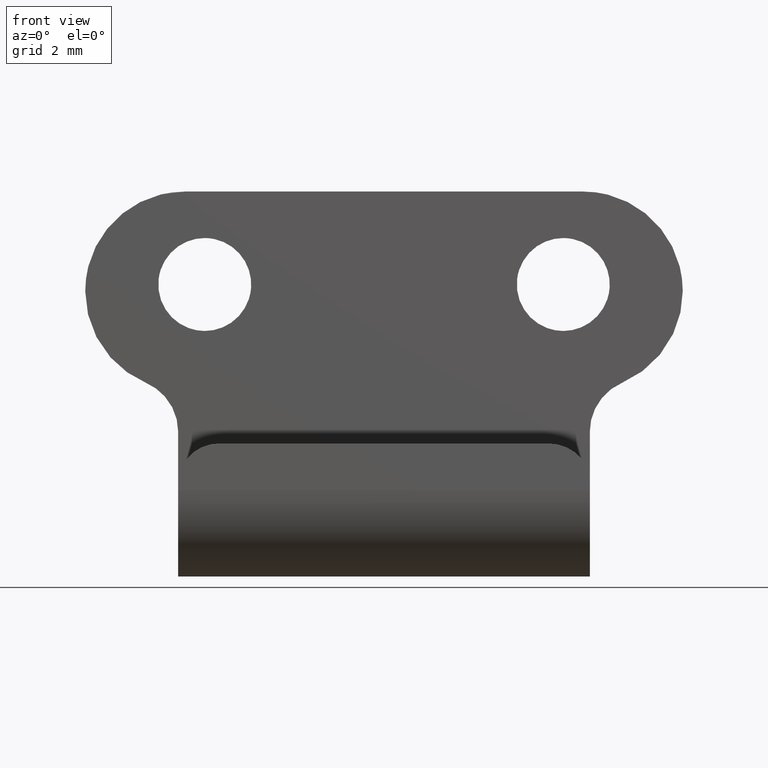
[diagram: clean part render]
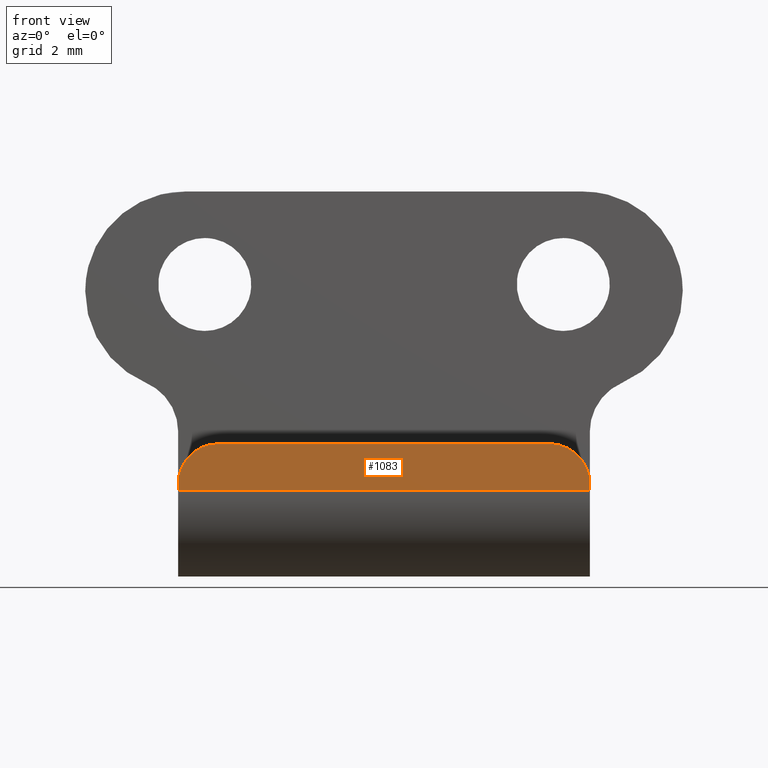
[diagram: same view with one face highlighted and labeled with its STEP entity id]
A machine part, front view. The second image highlights one B-rep face of the part: STEP entity #1083.
In plain terms, the highlighted face is a freeform B-spline surface patch.
Its self-contained STEP definition (entity closure, byte-faithful):
#447=CARTESIAN_POINT('',(-7.750000000000000,-6.500000000000000,-11.0));
#448=VERTEX_POINT('',#447);
#454=CARTESIAN_POINT('',(-6.250000000000000,-6.500000000000000,-9.500000000000000));
#455=VERTEX_POINT('',#454);
#456=CARTESIAN_POINT('',(-6.250000000000000,-6.500000000000000,-9.500000000000000));
#457=CARTESIAN_POINT('',(-7.750000000000001,-6.500000000000001,-9.500000000000000));
#458=CARTESIAN_POINT('',(-7.750000000000000,-6.500000000000000,-11.0));
#466=(BOUNDED_CURVE()B_SPLINE_CURVE(2,(#456,#457,#458),.UNSPECIFIED.,.F.,.U.)CURVE()GEOMETRIC_REPRESENTATION_ITEM()QUASI_UNIFORM_CURVE()RATIONAL_B_SPLINE_CURVE((1.0,0.707106781186548,1.0))REPRESENTATION_ITEM(''));
#467=EDGE_CURVE('',#455,#448,#466,.T.);
#508=CARTESIAN_POINT('',(6.250000000000000,-6.500000000000000,-9.500000000000000));
#509=VERTEX_POINT('',#508);
#515=CARTESIAN_POINT('',(7.750000000000000,-6.500000000000000,-11.0));
#516=VERTEX_POINT('',#515);
#517=CARTESIAN_POINT('',(7.750000000000000,-6.500000000000000,-11.0));
#518=CARTESIAN_POINT('',(7.750000000000001,-6.500000000000001,-9.500000000000000));
#519=CARTESIAN_POINT('',(6.250000000000000,-6.500000000000000,-9.500000000000000));
#527=(BOUNDED_CURVE()B_SPLINE_CURVE(2,(#517,#518,#519),.UNSPECIFIED.,.F.,.U.)CURVE()GEOMETRIC_REPRESENTATION_ITEM()QUASI_UNIFORM_CURVE()RATIONAL_B_SPLINE_CURVE((1.0,0.707106781186548,1.0))REPRESENTATION_ITEM(''));
#528=EDGE_CURVE('',#516,#509,#527,.T.);
#771=CARTESIAN_POINT('',(-7.750000000000000,-6.500000000000000,-11.250000000000000));
#772=VERTEX_POINT('',#771);
#773=CARTESIAN_POINT('',(-7.750000000000000,-6.500000000000000,-11.0));
#774=CARTESIAN_POINT('',(-7.750000000000000,-6.500000000000000,-11.250000000000000));
#775=QUASI_UNIFORM_CURVE('',1,(#773,#774),.UNSPECIFIED.,.F.,.U.);
#776=EDGE_CURVE('',#448,#772,#775,.T.);
#953=CARTESIAN_POINT('',(7.750000000000000,-6.500000000000000,-11.250000000000000));
#954=VERTEX_POINT('',#953);
#955=CARTESIAN_POINT('',(7.750000000000000,-6.500000000000000,-11.0));
#956=CARTESIAN_POINT('',(7.750000000000000,-6.500000000000000,-11.250000000000000));
#957=QUASI_UNIFORM_CURVE('',1,(#955,#956),.UNSPECIFIED.,.F.,.U.);
#958=EDGE_CURVE('',#516,#954,#957,.T.);
#1055=CARTESIAN_POINT('',(6.250000000000000,-6.500000000000000,-9.500000000000000));
#1056=CARTESIAN_POINT('',(-6.250000000000000,-6.500000000000000,-9.500000000000000));
#1057=QUASI_UNIFORM_CURVE('',1,(#1055,#1056),.UNSPECIFIED.,.F.,.U.);
#1058=EDGE_CURVE('',#509,#455,#1057,.T.);
#1066=CARTESIAN_POINT('',(-8.524224969957995,-6.500000000000000,-9.412587503391839));
#1067=CARTESIAN_POINT('',(-8.524224969957995,-6.500000000000000,-11.337412543546820));
#1068=CARTESIAN_POINT('',(8.524225385700390,-6.500000000000000,-9.412587503391839));
#1069=CARTESIAN_POINT('',(8.524225385700390,-6.500000000000000,-11.337412543546820));
#1070=B_SPLINE_SURFACE_WITH_KNOTS('',1,1,((#1066,#1068),(#1067,#1069)),.UNSPECIFIED.,.F.,.F.,.U.,(2,2),(2,2),(0.0,1.924825040154982),(0.0,17.048450355658389),.UNSPECIFIED.);
#1071=ORIENTED_EDGE('',*,*,#958,.F.);
#1072=ORIENTED_EDGE('',*,*,#528,.T.);
#1073=ORIENTED_EDGE('',*,*,#1058,.T.);
#1074=ORIENTED_EDGE('',*,*,#467,.T.);
#1075=ORIENTED_EDGE('',*,*,#776,.T.);
#1076=CARTESIAN_POINT('',(7.750000000000000,-6.500000000000000,-11.250000000000000));
#1077=CARTESIAN_POINT('',(-7.750000000000000,-6.500000000000000,-11.250000000000000));
#1078=QUASI_UNIFORM_CURVE('',1,(#1076,#1077),.UNSPECIFIED.,.F.,.U.);
#1079=EDGE_CURVE('',#954,#772,#1078,.T.);
#1080=ORIENTED_EDGE('',*,*,#1079,.F.);
#1081=EDGE_LOOP('',(#1071,#1072,#1073,#1074,#1075,#1080));
#1082=FACE_OUTER_BOUND('',#1081,.T.);
#1083=ADVANCED_FACE('',(#1082),#1070,.T.);